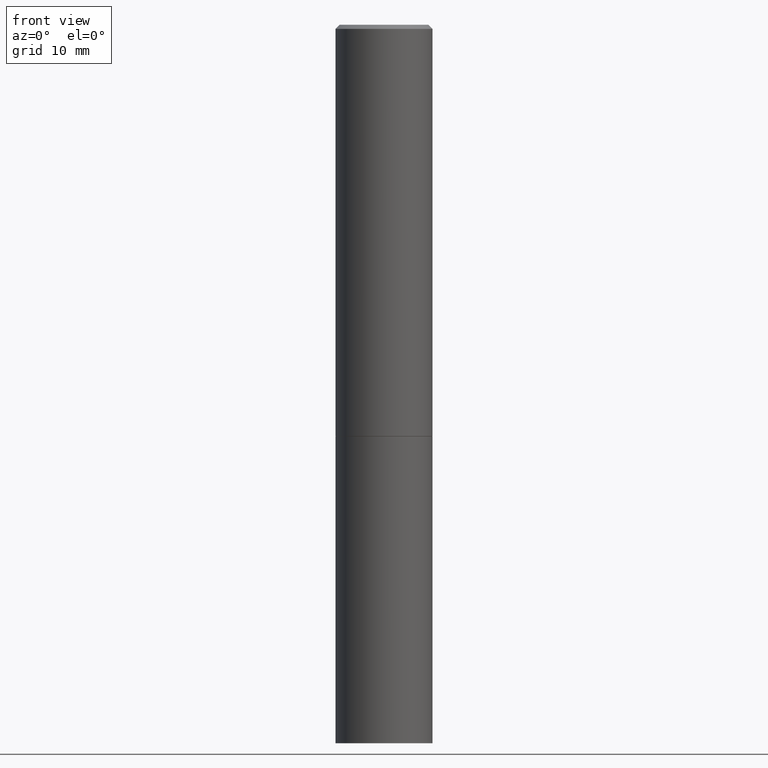
[diagram: clean part render]
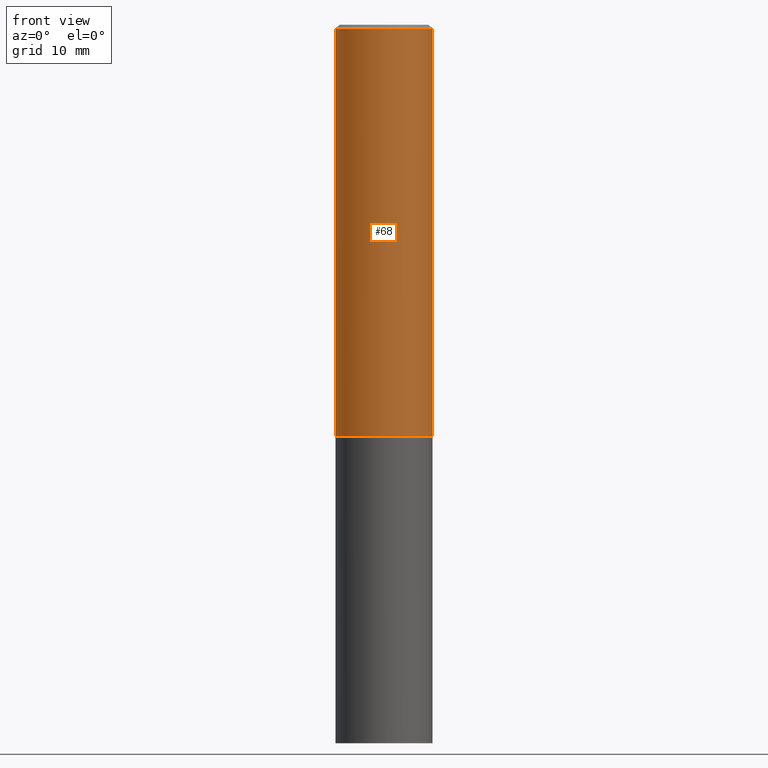
[diagram: same view with one face highlighted and labeled with its STEP entity id]
A machine part, front view. The second image highlights one B-rep face of the part: STEP entity #68.
In plain terms, the highlighted cylindrical surface (partial cylindrical patch) has radius 5.9995 mm, axis along (-0, 0, 1).
Its self-contained STEP definition (entity closure, byte-faithful):
#3 = AXIS2_PLACEMENT_3D ( 'NONE', #129, #182, #41 ) ;
#6 = EDGE_CURVE ( 'NONE', #273, #118, #31, .T. ) ;
#17 = CARTESIAN_POINT ( 'NONE',  ( -0.2361999999999997990, 1.579546157692631649E-15, -0.02000000000000003164 ) ) ;
#31 = LINE ( 'NONE', #365, #200 ) ;
#41 = DIRECTION ( 'NONE',  ( 1.000000000000000000, -6.982962677686267499E-15, 4.876176775795936353E-29 ) ) ;
#46 = CARTESIAN_POINT ( 'NONE',  ( -0.2361999999999998823, 1.678301941865355803E-15, -1.161852468318208336E-29 ) ) ;
#68 = ADVANCED_FACE ( 'NONE', ( #329 ), #69, .T. ) ;
#69 = CYLINDRICAL_SURFACE ( 'NONE', #3, 0.2361999999999998823 ) ;
#71 = ORIENTED_EDGE ( 'NONE', *, *, #332, .F. ) ;
#73 = CARTESIAN_POINT ( 'NONE',  ( 4.890937612370280165E-31, -6.982962677686301470E-17, -0.02000000000000003164 ) ) ;
#86 = CARTESIAN_POINT ( 'NONE',  ( 0.2361999999999997990, -1.690279253850497391E-15, -0.02000000000000003164 ) ) ;
#95 = ORIENTED_EDGE ( 'NONE', *, *, #209, .T. ) ;
#96 = LINE ( 'NONE', #46, #165 ) ;
#98 = VERTEX_POINT ( 'NONE', #17 ) ;
#116 = CARTESIAN_POINT ( 'NONE',  ( -0.2361999999999999933, -1.859965246918285484E-15, -2.006799999999999695 ) ) ;
#118 = VERTEX_POINT ( 'NONE', #86 ) ;
#129 = CARTESIAN_POINT ( 'NONE',  ( 0.000000000000000000, 0.000000000000000000, 0.000000000000000000 ) ) ;
#146 = DIRECTION ( 'NONE',  ( -2.445468806185136597E-29, 3.491481338843145583E-15, 1.000000000000000000 ) ) ;
#148 = CARTESIAN_POINT ( 'NONE',  ( 4.907566800252331482E-29, -7.006704750790423614E-15, -2.006799999999999695 ) ) ;
#149 = AXIS2_PLACEMENT_3D ( 'NONE', #148, #146, #263 ) ;
#151 = DIRECTION ( 'NONE',  ( 1.000000000000000000, -6.982962677686266711E-15, 0.000000000000000000 ) ) ;
#153 = VERTEX_POINT ( 'NONE', #116 ) ;
#165 = VECTOR ( 'NONE', #322, 39.37007874015748143 ) ;
#182 = DIRECTION ( 'NONE',  ( -2.445468806185136597E-29, 3.491481338843145583E-15, 1.000000000000000000 ) ) ;
#191 = CARTESIAN_POINT ( 'NONE',  ( 0.2361999999999999933, -8.656080535259919350E-15, -2.006799999999999695 ) ) ;
#195 = DIRECTION ( 'NONE',  ( -2.445468806185136877E-29, 3.491481338843145188E-15, 1.000000000000000000 ) ) ;
#200 = VECTOR ( 'NONE', #195, 39.37007874015748143 ) ;
#209 = EDGE_CURVE ( 'NONE', #153, #273, #309, .T. ) ;
#214 = DIRECTION ( 'NONE',  ( -2.445468806185136597E-29, 3.491481338843145583E-15, 1.000000000000000000 ) ) ;
#234 = EDGE_LOOP ( 'NONE', ( #71, #95, #247, #300 ) ) ;
#247 = ORIENTED_EDGE ( 'NONE', *, *, #6, .T. ) ;
#263 = DIRECTION ( 'NONE',  ( 1.000000000000000000, -6.982962677686265133E-15, 0.000000000000000000 ) ) ;
#266 = EDGE_CURVE ( 'NONE', #98, #118, #314, .T. ) ;
#273 = VERTEX_POINT ( 'NONE', #191 ) ;
#300 = ORIENTED_EDGE ( 'NONE', *, *, #266, .F. ) ;
#309 = CIRCLE ( 'NONE', #149, 0.2361999999999999933 ) ;
#314 = CIRCLE ( 'NONE', #359, 0.2361999999999997990 ) ;
#322 = DIRECTION ( 'NONE',  ( -2.445468806185136877E-29, 3.491481338843145188E-15, 1.000000000000000000 ) ) ;
#329 = FACE_OUTER_BOUND ( 'NONE', #234, .T. ) ;
#332 = EDGE_CURVE ( 'NONE', #153, #98, #96, .T. ) ;
#359 = AXIS2_PLACEMENT_3D ( 'NONE', #73, #214, #151 ) ;
#365 = CARTESIAN_POINT ( 'NONE',  ( 0.2361999999999998823, -1.649375784469495539E-15, 1.151752954442999528E-29 ) ) ;